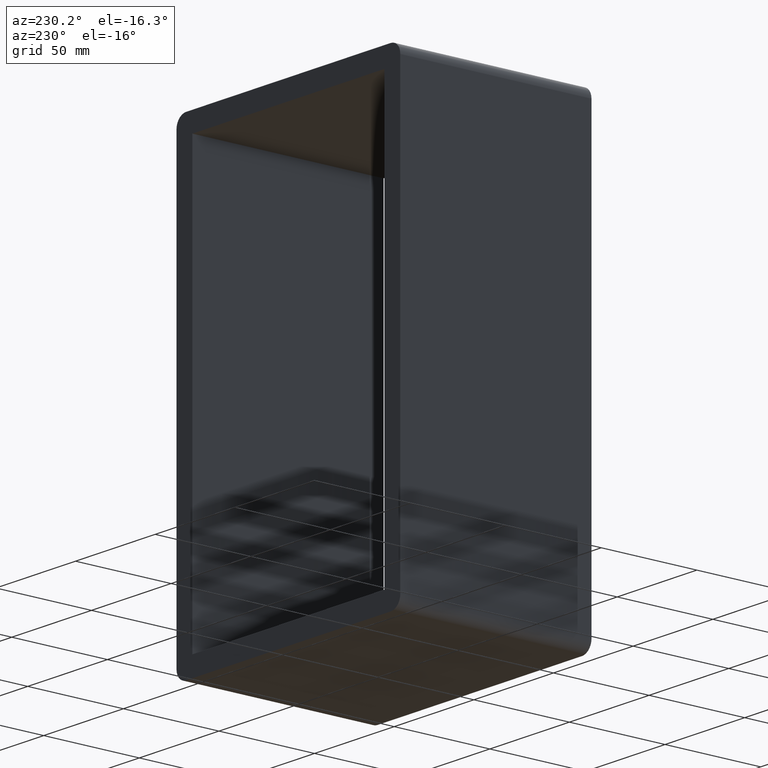
[diagram: clean part render]
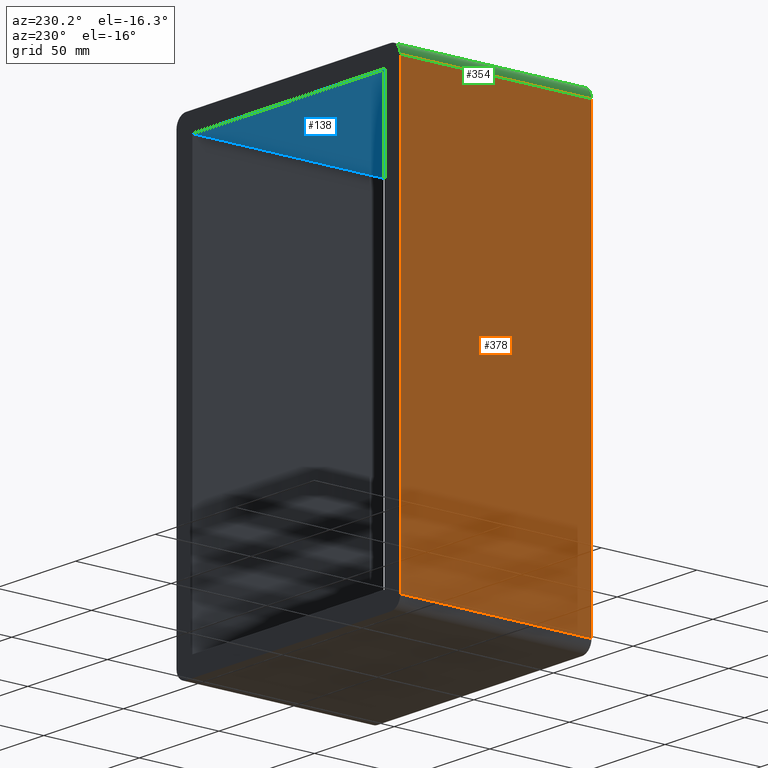
[diagram: same view with three faces highlighted in distinct colors, each labeled with its STEP entity id]
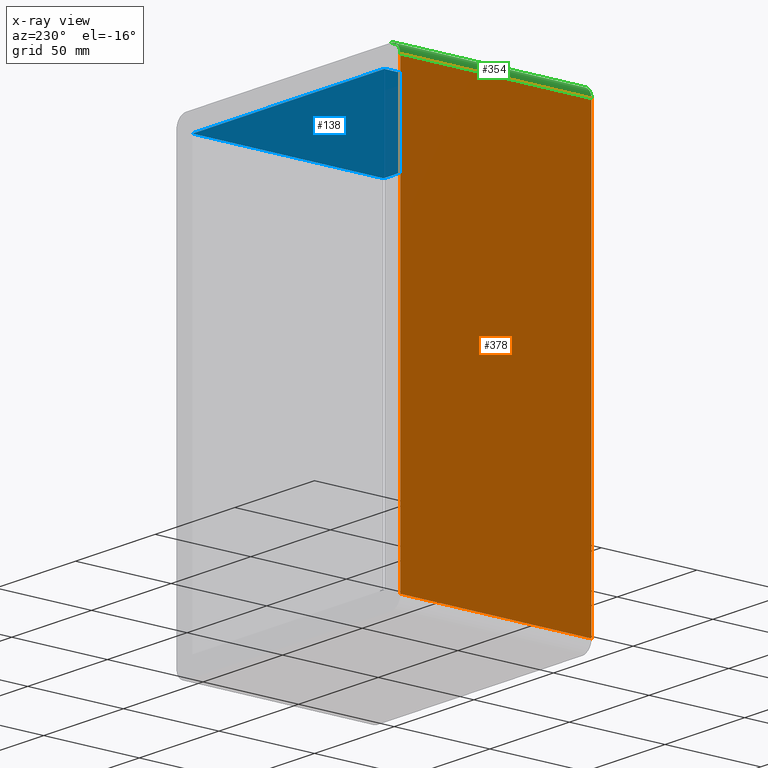
[diagram: x-ray of the same camera — body ghosted, the three highlighted faces saturated]
A machine part, auxiliary view with three faces highlighted in distinct colors.
The next image is the same camera in x-ray (body ghosted, the three faces saturated) — at least one of them is partly hidden behind the body in this view.
Their STEP definitions:

[orange] entity #378 — the highlighted planar face has unit normal (-1, 0, 0).
#224=CARTESIAN_POINT('',(-70.25,-3.0,112.99999999999997));
#225=VERTEX_POINT('',#224);
#233=CARTESIAN_POINT('',(-70.25,-3.0,-113.00000000000004));
#234=VERTEX_POINT('',#233);
#235=CARTESIAN_POINT('',(-70.25,-3.0,112.99999999999996));
#236=DIRECTION('',(0.0,0.0,-1.0));
#237=VECTOR('',#236,226.0);
#238=LINE('',#235,#237);
#239=EDGE_CURVE('',#225,#234,#238,.T.);
#336=CARTESIAN_POINT('',(-70.25,97.0,112.99999999999997));
#337=VERTEX_POINT('',#336);
#345=CARTESIAN_POINT('',(-70.25,-3.0,112.99999999999997));
#346=DIRECTION('',(0.0,1.0,0.0));
#347=VECTOR('',#346,100.0);
#348=LINE('',#345,#347);
#349=EDGE_CURVE('',#225,#337,#348,.T.);
#355=CARTESIAN_POINT('',(-70.25,0.0,-113.00000000000004));
#356=DIRECTION('',(-1.0,0.0,0.0));
#357=DIRECTION('',(0.0,0.0,1.0));
#358=AXIS2_PLACEMENT_3D('',#355,#356,#357);
#359=PLANE('',#358);
#360=ORIENTED_EDGE('',*,*,#349,.T.);
#361=CARTESIAN_POINT('',(-70.25,97.0,-113.00000000000004));
#362=VERTEX_POINT('',#361);
#363=CARTESIAN_POINT('',(-70.25,97.0,-113.00000000000004));
#364=DIRECTION('',(0.0,0.0,1.0));
#365=VECTOR('',#364,226.0);
#366=LINE('',#363,#365);
#367=EDGE_CURVE('',#362,#337,#366,.T.);
#368=ORIENTED_EDGE('',*,*,#367,.F.);
#369=CARTESIAN_POINT('',(-70.25,-3.0,-113.00000000000004));
#370=DIRECTION('',(0.0,1.0,0.0));
#371=VECTOR('',#370,100.0);
#372=LINE('',#369,#371);
#373=EDGE_CURVE('',#234,#362,#372,.T.);
#374=ORIENTED_EDGE('',*,*,#373,.F.);
#375=ORIENTED_EDGE('',*,*,#239,.F.);
#376=EDGE_LOOP('',(#360,#368,#374,#375));
#377=FACE_OUTER_BOUND('',#376,.T.);
#378=ADVANCED_FACE('',(#377),#359,.T.);

[blue] entity #138 — the highlighted planar face has unit normal (0, 0, 1).
#83=CARTESIAN_POINT('',(60.25,-3.0,108.99999999999997));
#84=VERTEX_POINT('',#83);
#91=CARTESIAN_POINT('',(60.25,97.0,108.99999999999997));
#92=VERTEX_POINT('',#91);
#93=CARTESIAN_POINT('',(60.25,-3.0,108.99999999999999));
#94=DIRECTION('',(0.0,1.0,0.0));
#95=VECTOR('',#94,100.0);
#96=LINE('',#93,#95);
#97=EDGE_CURVE('',#84,#92,#96,.T.);
#108=CARTESIAN_POINT('',(-60.25,0.0,108.99999999999999));
#109=DIRECTION('',(0.0,0.0,1.0));
#110=DIRECTION('',(1.0,0.0,0.0));
#111=AXIS2_PLACEMENT_3D('',#108,#109,#110);
#112=PLANE('',#111);
#113=ORIENTED_EDGE('',*,*,#97,.F.);
#114=CARTESIAN_POINT('',(-60.25,-3.0,108.99999999999997));
#115=VERTEX_POINT('',#114);
#116=CARTESIAN_POINT('',(-60.25,-3.0,108.99999999999999));
#117=DIRECTION('',(1.0,0.0,0.0));
#118=VECTOR('',#117,120.50000000000001);
#119=LINE('',#116,#118);
#120=EDGE_CURVE('',#115,#84,#119,.T.);
#121=ORIENTED_EDGE('',*,*,#120,.F.);
#122=CARTESIAN_POINT('',(-60.25,97.0,108.99999999999997));
#123=VERTEX_POINT('',#122);
#124=CARTESIAN_POINT('',(-60.25,-3.0,108.99999999999999));
#125=DIRECTION('',(0.0,1.0,0.0));
#126=VECTOR('',#125,100.0);
#127=LINE('',#124,#126);
#128=EDGE_CURVE('',#115,#123,#127,.T.);
#129=ORIENTED_EDGE('',*,*,#128,.T.);
#130=CARTESIAN_POINT('',(60.250000000000014,97.0,108.99999999999999));
#131=DIRECTION('',(-1.0,0.0,0.0));
#132=VECTOR('',#131,120.50000000000001);
#133=LINE('',#130,#132);
#134=EDGE_CURVE('',#92,#123,#133,.T.);
#135=ORIENTED_EDGE('',*,*,#134,.F.);
#136=EDGE_LOOP('',(#113,#121,#129,#135));
#137=FACE_OUTER_BOUND('',#136,.T.);
#138=ADVANCED_FACE('',(#137),#112,.F.);

[green] entity #354 — the highlighted cylindrical surface (edge-blend (fillet) strip) has radius 6 mm, axis along (0, 1, 0).
#216=CARTESIAN_POINT('',(-64.25,-3.0,118.99999999999999));
#217=VERTEX_POINT('',#216);
#224=CARTESIAN_POINT('',(-70.25,-3.0,112.99999999999997));
#225=VERTEX_POINT('',#224);
#226=CARTESIAN_POINT('',(-64.25,-3.0,112.99999999999997));
#227=DIRECTION('',(0.0,-1.0,0.0));
#228=DIRECTION('',(-1.0,0.0,0.0));
#229=AXIS2_PLACEMENT_3D('',#226,#227,#228);
#230=CIRCLE('',#229,6.000000000000001);
#231=EDGE_CURVE('',#217,#225,#230,.T.);
#312=CARTESIAN_POINT('',(-64.25,97.0,118.99999999999999));
#313=VERTEX_POINT('',#312);
#320=CARTESIAN_POINT('',(-64.25,-3.0,118.99999999999999));
#321=DIRECTION('',(0.0,1.0,0.0));
#322=VECTOR('',#321,100.0);
#323=LINE('',#320,#322);
#324=EDGE_CURVE('',#217,#313,#323,.T.);
#330=CARTESIAN_POINT('',(-64.25,0.0,112.99999999999997));
#331=DIRECTION('',(0.0,1.0,0.0));
#332=DIRECTION('',(-1.0,0.0,0.0));
#333=AXIS2_PLACEMENT_3D('',#330,#331,#332);
#334=CYLINDRICAL_SURFACE('',#333,6.000000000000001);
#335=ORIENTED_EDGE('',*,*,#324,.T.);
#336=CARTESIAN_POINT('',(-70.25,97.0,112.99999999999997));
#337=VERTEX_POINT('',#336);
#338=CARTESIAN_POINT('',(-64.25,97.0,112.99999999999997));
#339=DIRECTION('',(0.0,1.0,0.0));
#340=DIRECTION('',(-1.0,0.0,0.0));
#341=AXIS2_PLACEMENT_3D('',#338,#339,#340);
#342=CIRCLE('',#341,6.000000000000001);
#343=EDGE_CURVE('',#337,#313,#342,.T.);
#344=ORIENTED_EDGE('',*,*,#343,.F.);
#345=CARTESIAN_POINT('',(-70.25,-3.0,112.99999999999997));
#346=DIRECTION('',(0.0,1.0,0.0));
#347=VECTOR('',#346,100.0);
#348=LINE('',#345,#347);
#349=EDGE_CURVE('',#225,#337,#348,.T.);
#350=ORIENTED_EDGE('',*,*,#349,.F.);
#351=ORIENTED_EDGE('',*,*,#231,.F.);
#352=EDGE_LOOP('',(#335,#344,#350,#351));
#353=FACE_OUTER_BOUND('',#352,.T.);
#354=ADVANCED_FACE('',(#353),#334,.T.);